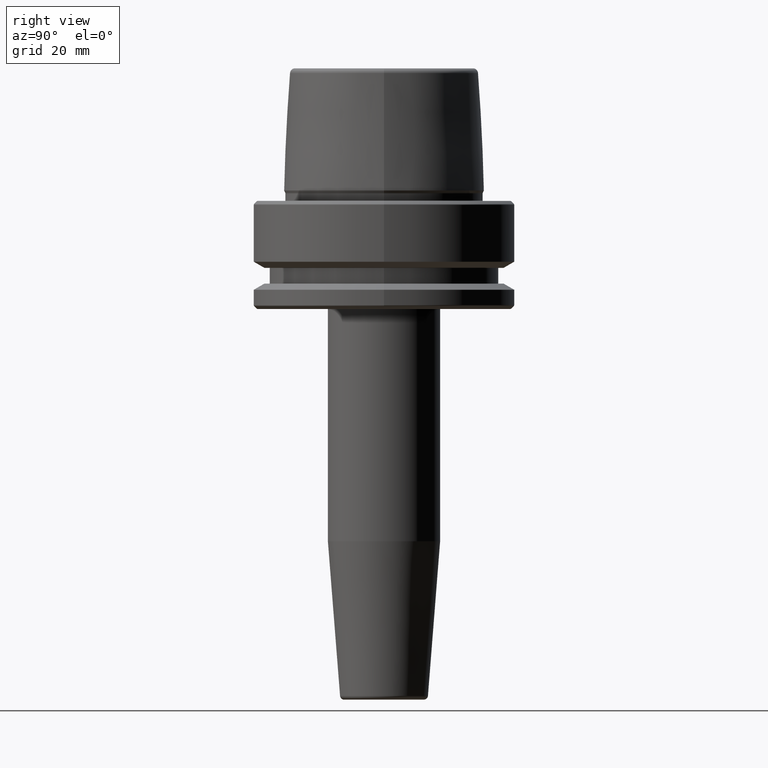
[diagram: clean part render]
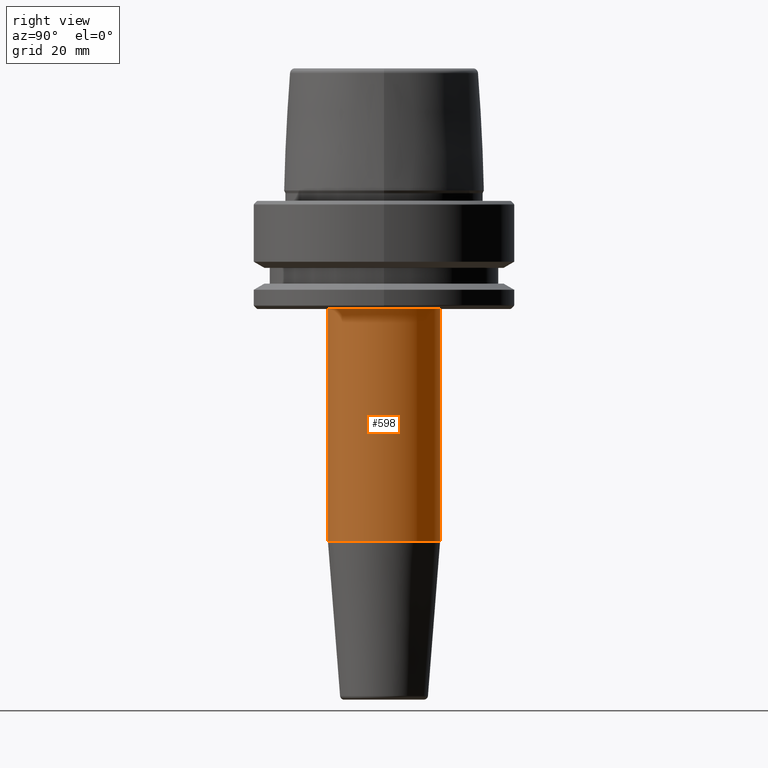
[diagram: same view with one face highlighted and labeled with its STEP entity id]
A machine part, right view. The second image highlights one B-rep face of the part: STEP entity #598.
In plain terms, the highlighted cylindrical surface (partial cylindrical patch) has radius 13.5 mm, axis along (-0, 0, -1).
Its self-contained STEP definition (entity closure, byte-faithful):
#36 = EDGE_LOOP ( 'NONE', ( #49, #1172, #784, #184 ) ) ;
#49 = ORIENTED_EDGE ( 'NONE', *, *, #870, .T. ) ;
#81 = CARTESIAN_POINT ( 'NONE',  ( 0.0000000000000000000, 0.0000000000000000000, -26.00000000000001100 ) ) ;
#116 = AXIS2_PLACEMENT_3D ( 'NONE', #81, #761, #190 ) ;
#145 = VECTOR ( 'NONE', #383, 1000.000000000000000 ) ;
#184 = ORIENTED_EDGE ( 'NONE', *, *, #777, .F. ) ;
#190 = DIRECTION ( 'NONE',  ( 1.000000000000000000, 0.0000000000000000000, 0.0000000000000000000 ) ) ;
#259 = VERTEX_POINT ( 'NONE', #923 ) ;
#269 = DIRECTION ( 'NONE',  ( -0.0000000000000000000, 5.211262975095120000E-017, -1.000000000000000000 ) ) ;
#309 = VERTEX_POINT ( 'NONE', #961 ) ;
#354 = CARTESIAN_POINT ( 'NONE',  ( 0.0000000000000000000, 13.49999999999999500, -120.0000000000000000 ) ) ;
#383 = DIRECTION ( 'NONE',  ( -0.0000000000000000000, 5.211262975095120000E-017, -1.000000000000000000 ) ) ;
#400 = DIRECTION ( 'NONE',  ( -0.0000000000000000000, 5.211262975095120000E-017, -1.000000000000000000 ) ) ;
#453 = CIRCLE ( 'NONE', #116, 13.49999999999998900 ) ;
#465 = CARTESIAN_POINT ( 'NONE',  ( 0.0000000000000000000, -13.49999999999998200, -81.88138579147243900 ) ) ;
#475 = VECTOR ( 'NONE', #1044, 1000.000000000000000 ) ;
#508 = LINE ( 'NONE', #354, #475 ) ;
#598 = ADVANCED_FACE ( 'NONE', ( #929 ), #1151, .T. ) ;
#632 = VERTEX_POINT ( 'NONE', #791 ) ;
#761 = DIRECTION ( 'NONE',  ( 0.0000000000000000000, 0.0000000000000000000, -1.000000000000000000 ) ) ;
#777 = EDGE_CURVE ( 'NONE', #309, #259, #508, .T. ) ;
#784 = ORIENTED_EDGE ( 'NONE', *, *, #999, .F. ) ;
#791 = CARTESIAN_POINT ( 'NONE',  ( 1.653273178848925900E-015, -13.49999999999999100, -26.00000000000001100 ) ) ;
#815 = VERTEX_POINT ( 'NONE', #465 ) ;
#824 = CIRCLE ( 'NONE', #1167, 13.49999999999998600 ) ;
#835 = AXIS2_PLACEMENT_3D ( 'NONE', #986, #400, #1088 ) ;
#861 = CARTESIAN_POINT ( 'NONE',  ( 0.0000000000000000000, 2.912125967721067800E-015, -81.88138579147243900 ) ) ;
#870 = EDGE_CURVE ( 'NONE', #309, #632, #453, .T. ) ;
#878 = CARTESIAN_POINT ( 'NONE',  ( 1.653273178848925500E-015, -13.49999999999998400, -120.0000000000000000 ) ) ;
#889 = LINE ( 'NONE', #878, #145 ) ;
#922 = EDGE_CURVE ( 'NONE', #632, #815, #889, .T. ) ;
#923 = CARTESIAN_POINT ( 'NONE',  ( 1.653273178848925100E-015, 13.49999999999998900, -81.88138579147243900 ) ) ;
#929 = FACE_OUTER_BOUND ( 'NONE', #36, .T. ) ;
#959 = DIRECTION ( 'NONE',  ( 0.0000000000000000000, 1.000000000000000000, 0.0000000000000000000 ) ) ;
#961 = CARTESIAN_POINT ( 'NONE',  ( 0.0000000000000000000, 13.49999999999998900, -26.00000000000001100 ) ) ;
#986 = CARTESIAN_POINT ( 'NONE',  ( 0.0000000000000000000, 4.898587196589412200E-015, -120.0000000000000000 ) ) ;
#999 = EDGE_CURVE ( 'NONE', #259, #815, #824, .T. ) ;
#1044 = DIRECTION ( 'NONE',  ( -0.0000000000000000000, 5.211262975095120000E-017, -1.000000000000000000 ) ) ;
#1088 = DIRECTION ( 'NONE',  ( 0.0000000000000000000, 1.000000000000000000, 0.0000000000000000000 ) ) ;
#1151 = CYLINDRICAL_SURFACE ( 'NONE', #835, 13.49999999999998900 ) ;
#1167 = AXIS2_PLACEMENT_3D ( 'NONE', #861, #269, #959 ) ;
#1172 = ORIENTED_EDGE ( 'NONE', *, *, #922, .T. ) ;